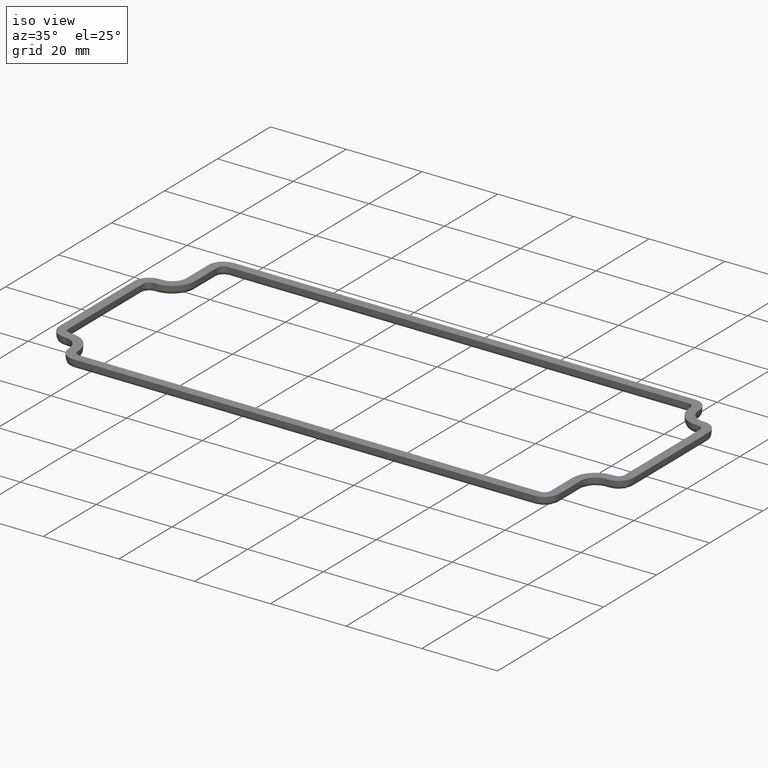
[diagram: clean part render]
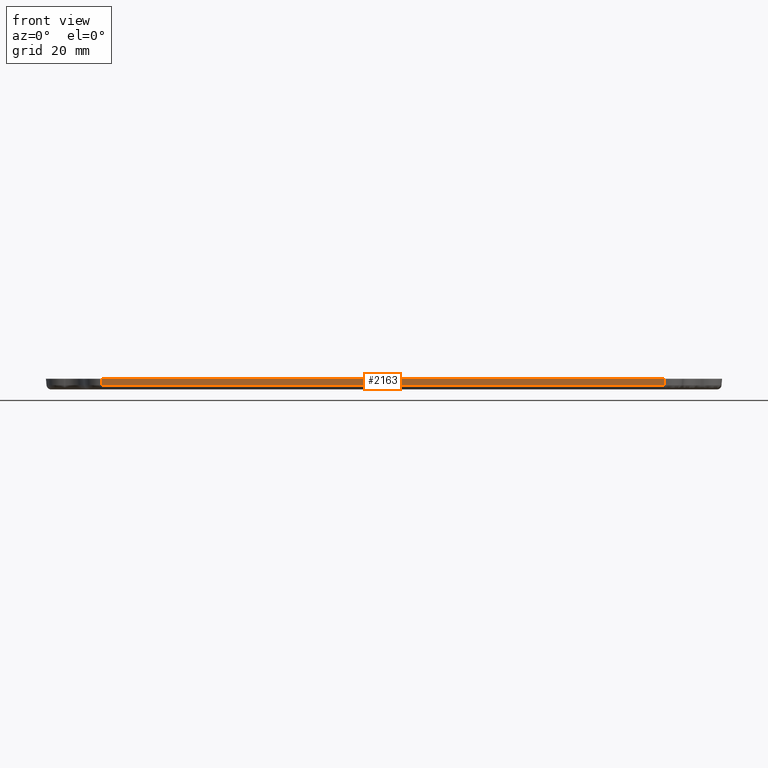
[diagram: tour spotlight — one face highlighted and labeled with its STEP entity id]
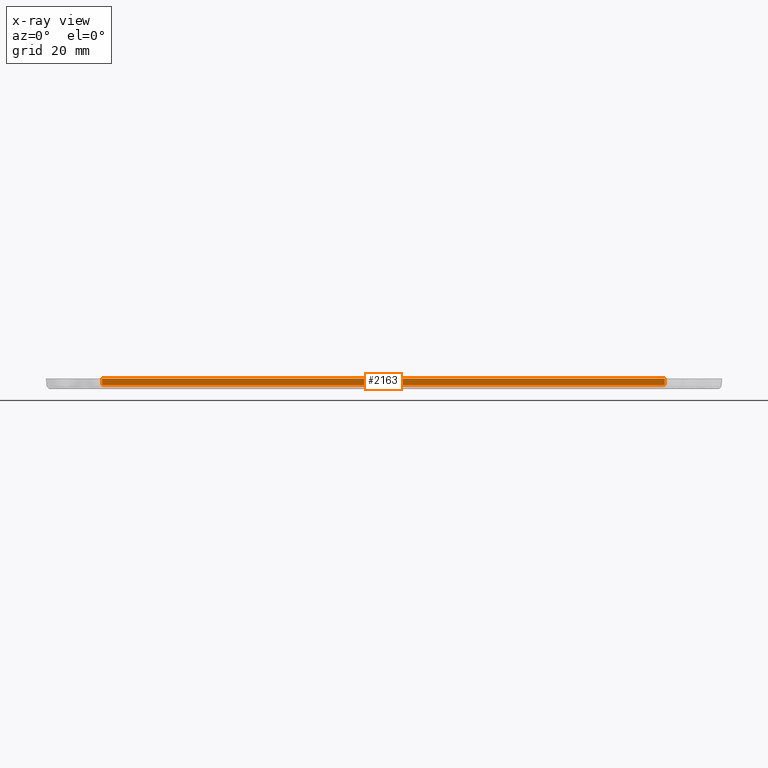
[diagram: x-ray of the same camera — body ghosted, this tour face saturated]
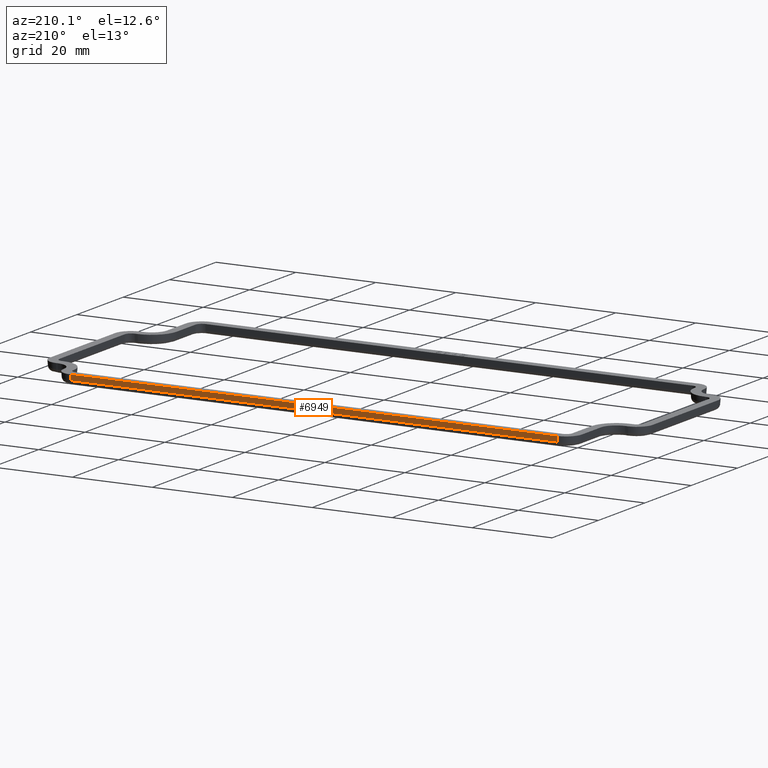
[diagram: tour spotlight — one face highlighted and labeled with its STEP entity id]
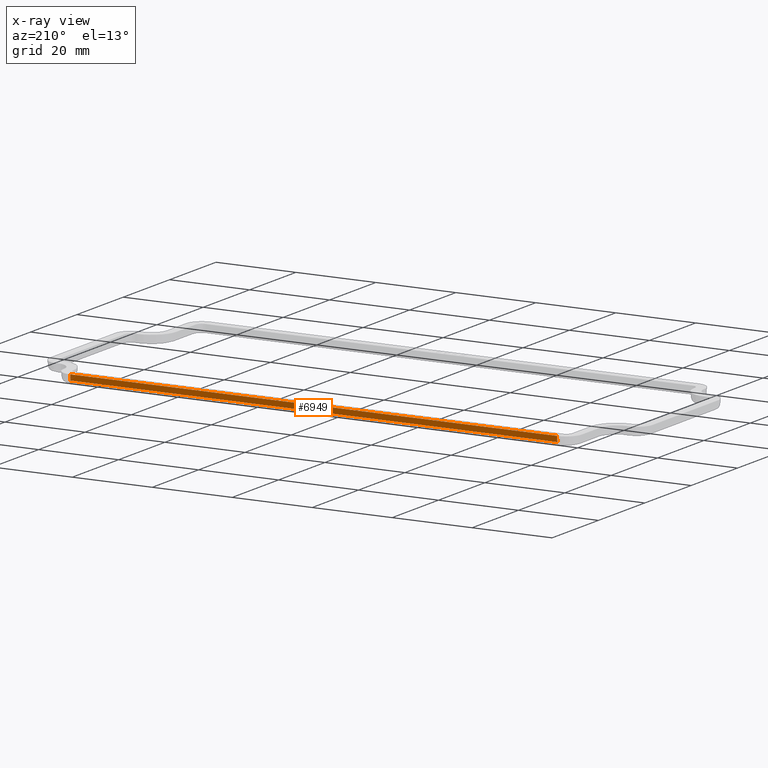
[diagram: x-ray of the same camera — body ghosted, this tour face saturated]
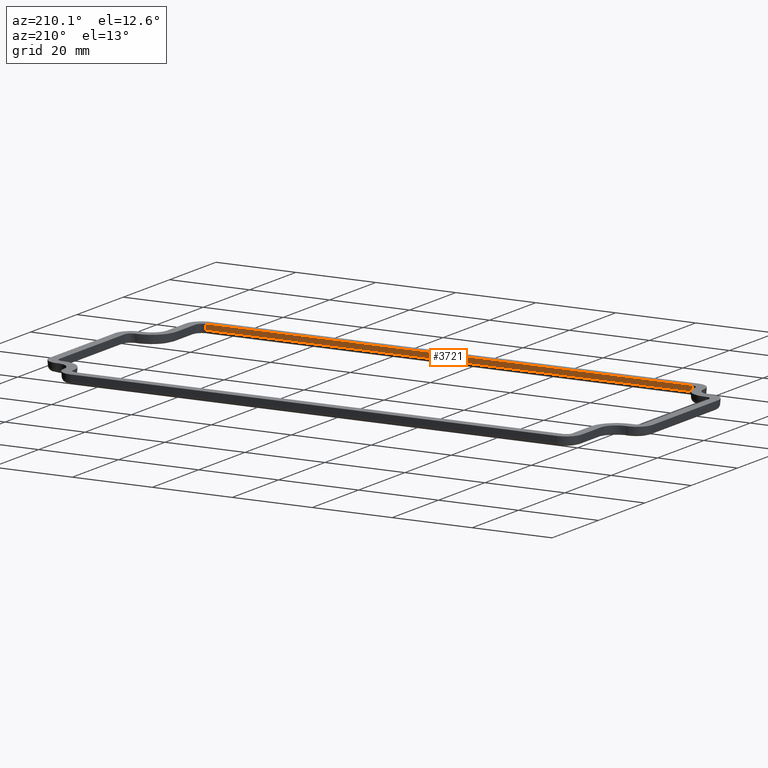
[diagram: tour spotlight — one face highlighted and labeled with its STEP entity id]
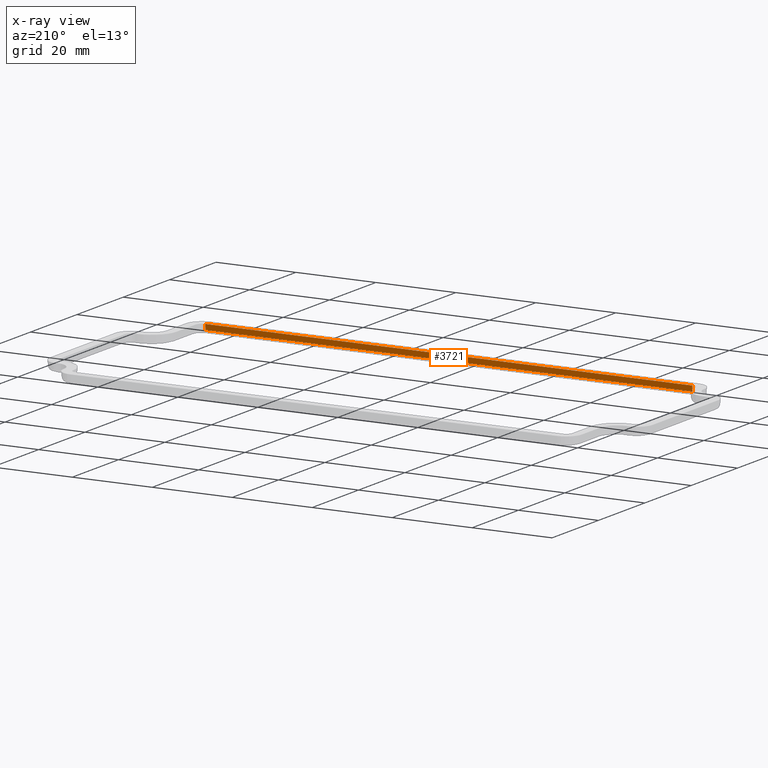
[diagram: x-ray of the same camera — body ghosted, this tour face saturated]
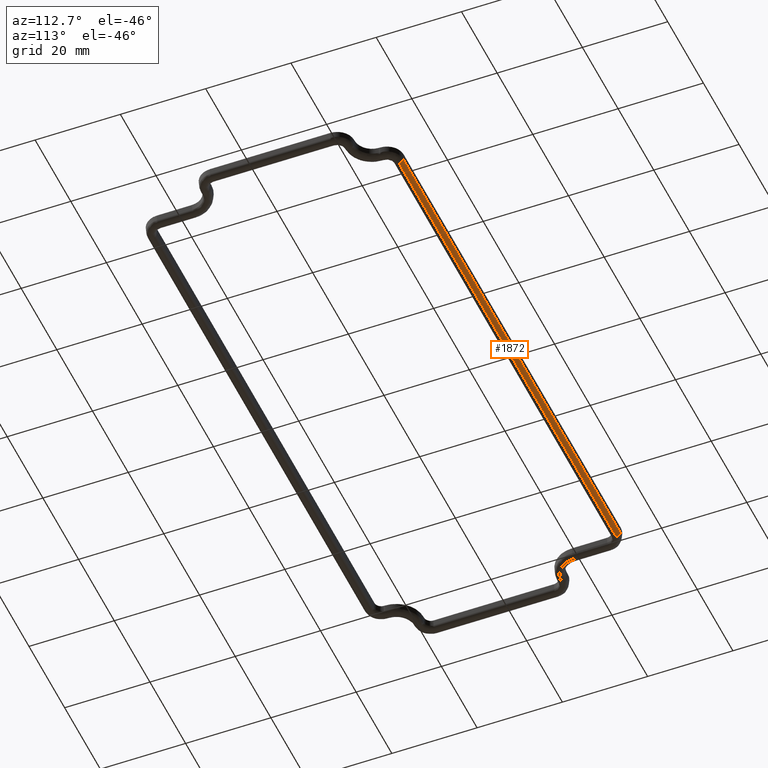
[diagram: tour spotlight — one face highlighted and labeled with its STEP entity id]
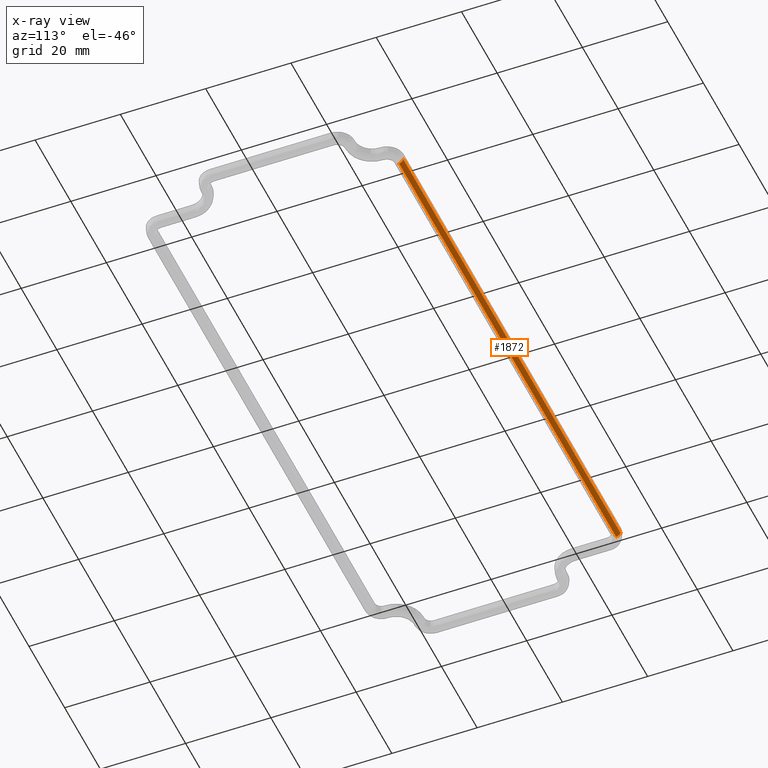
[diagram: x-ray of the same camera — body ghosted, this tour face saturated]
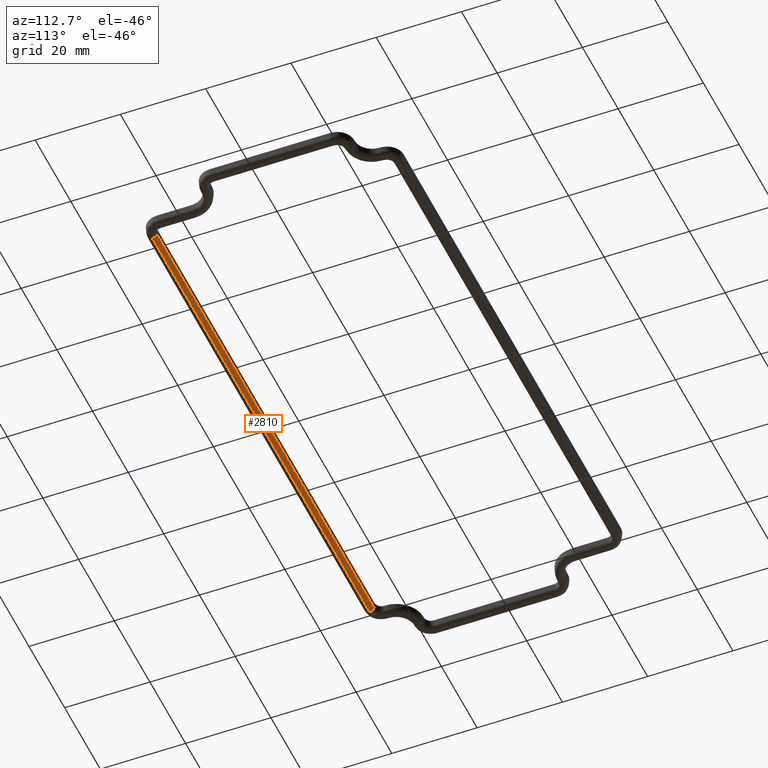
[diagram: tour spotlight — one face highlighted and labeled with its STEP entity id]
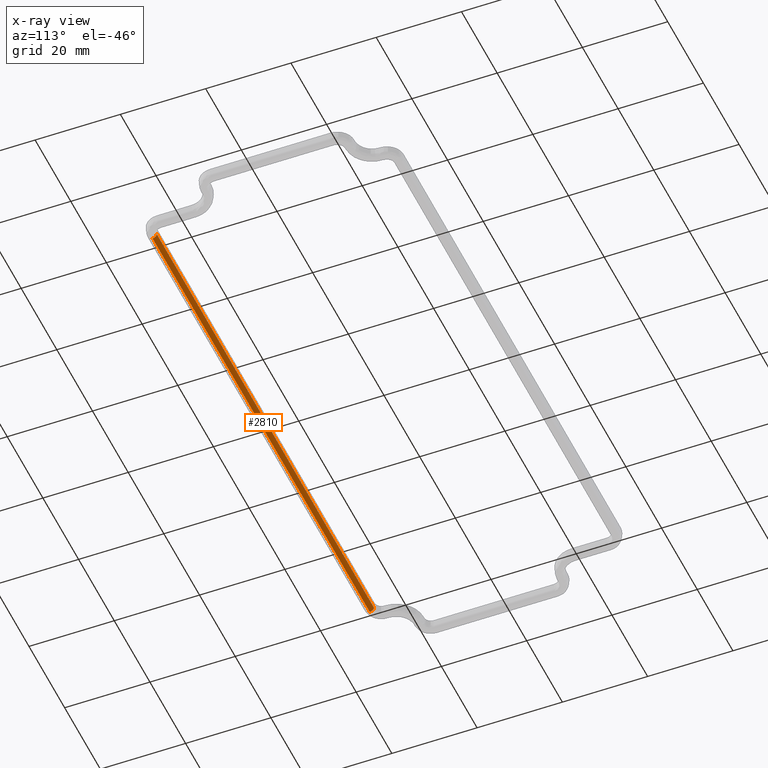
[diagram: x-ray of the same camera — body ghosted, this tour face saturated]
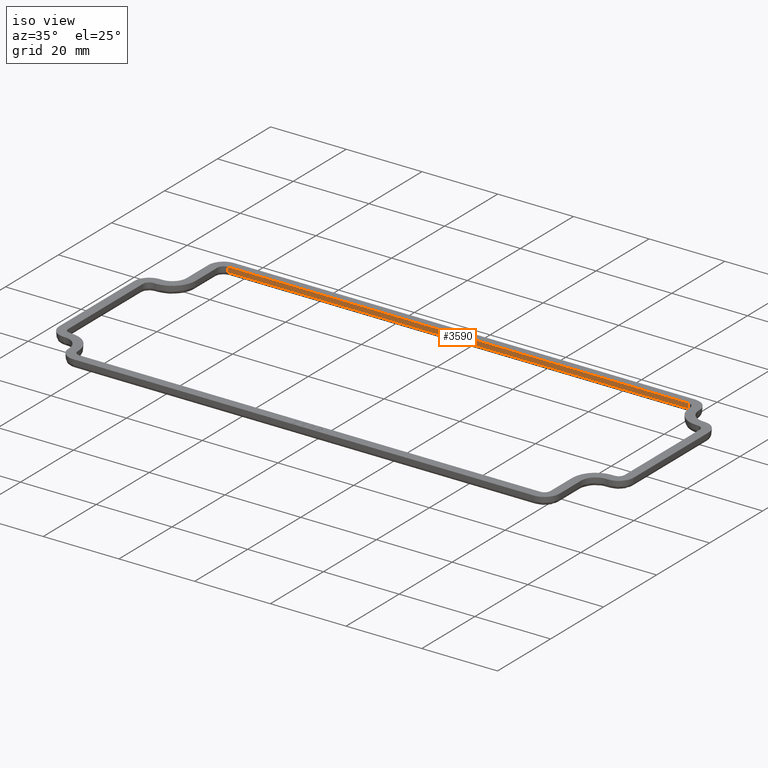
[diagram: tour spotlight — one face highlighted and labeled with its STEP entity id]
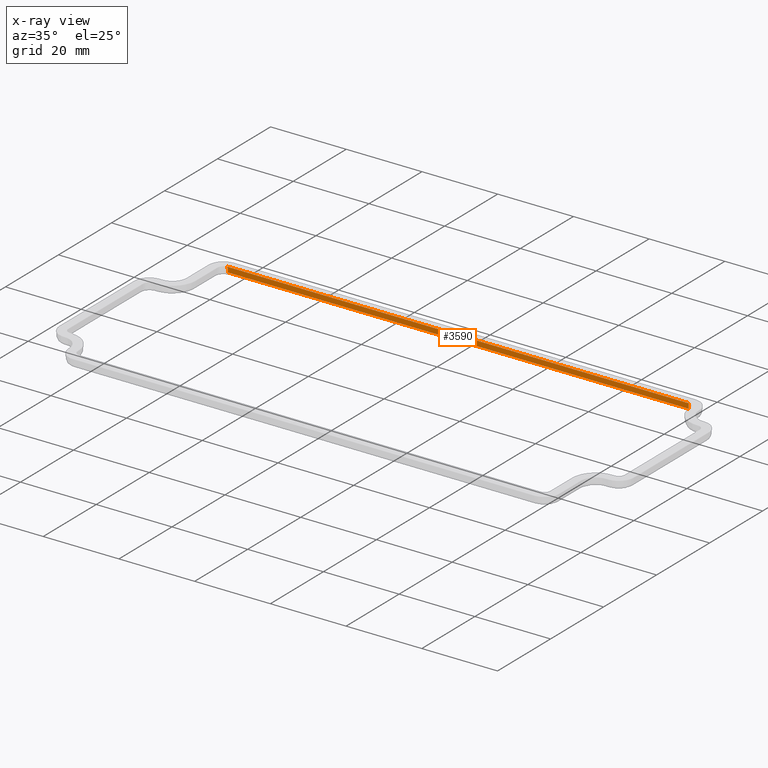
[diagram: x-ray of the same camera — body ghosted, this tour face saturated]
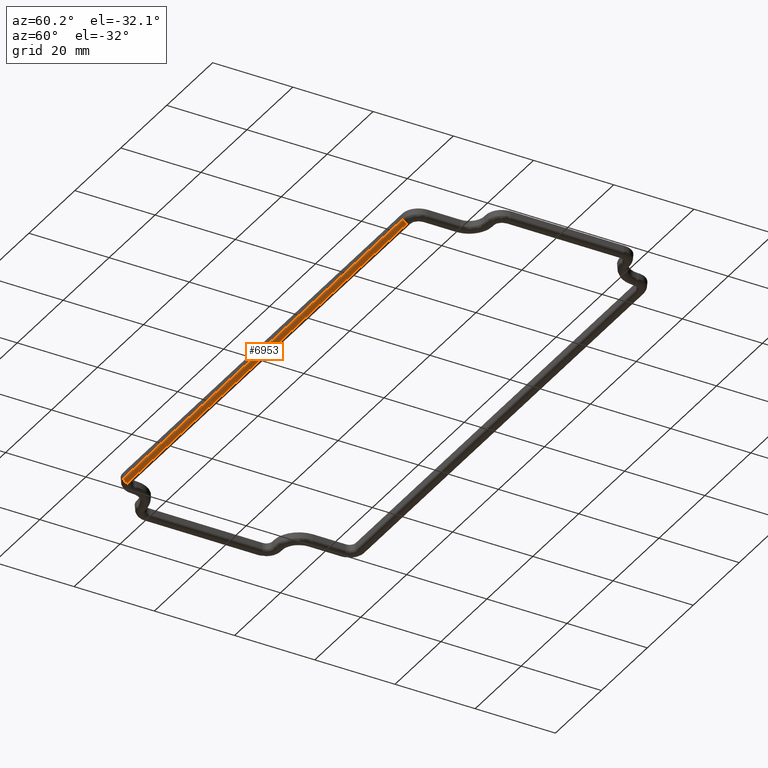
[diagram: tour spotlight — one face highlighted and labeled with its STEP entity id]
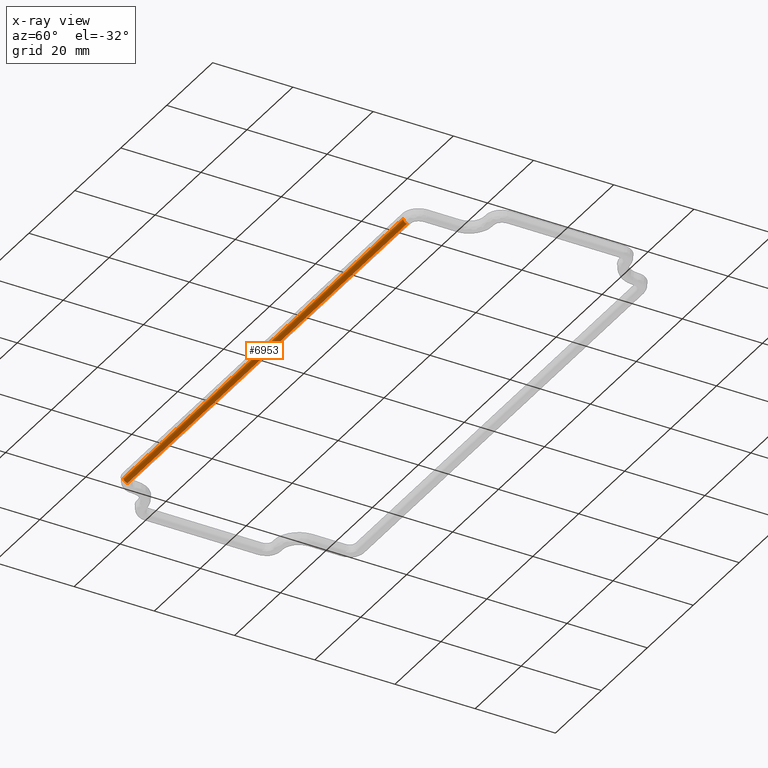
[diagram: x-ray of the same camera — body ghosted, this tour face saturated]
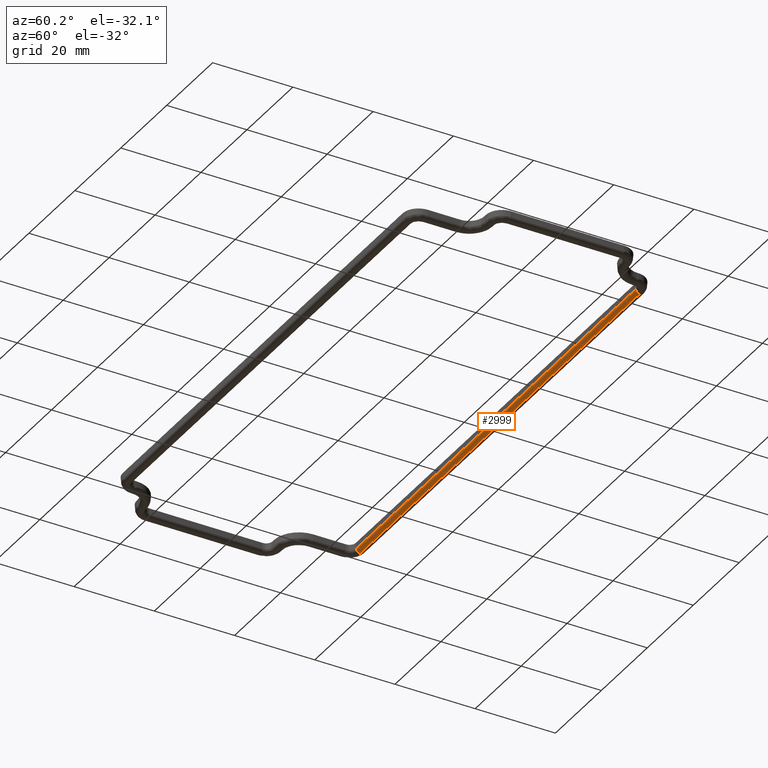
[diagram: tour spotlight — one face highlighted and labeled with its STEP entity id]
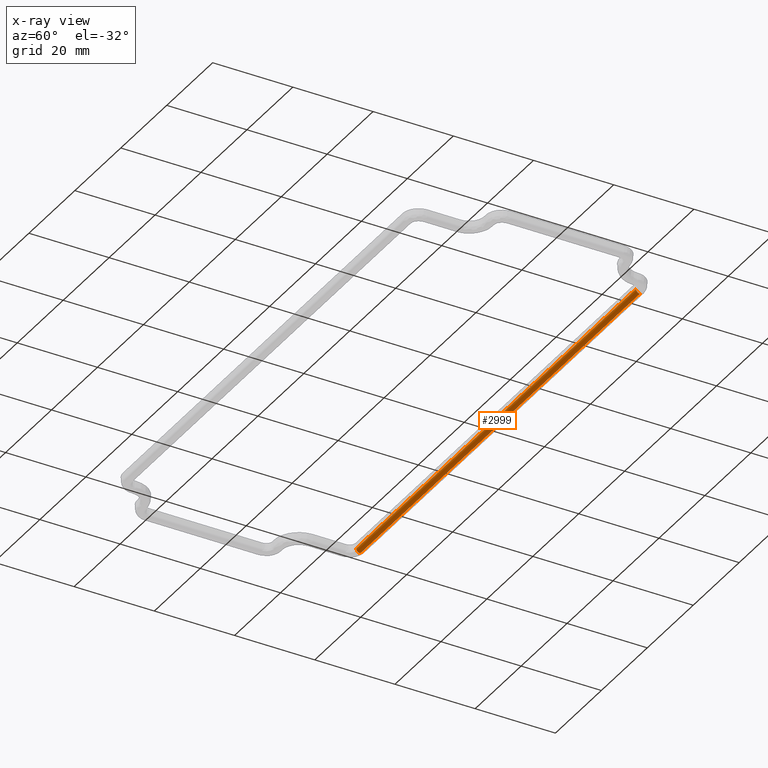
[diagram: x-ray of the same camera — body ghosted, this tour face saturated]
A machine part: a face-by-face anatomy tour. The part has 154 B-rep faces; the first image is the clean iso view, then the 8 largest visible faces are spotlighted one at a time (largest first), each with its STEP entity span.

Face 1 — front view, entity #2163. An x-ray twin of the same camera follows (body ghosted, this face saturated) — the face is partly hidden behind the body. In plain terms, the highlighted planar face has unit normal (0, -0.9962, -0.0872).
Definition (entity closure, byte-faithful):
#80 = LINE ( 'NONE', #1218, #6196 ) ;
#230 = CARTESIAN_POINT ( 'NONE',  ( 2.391732283464567121, -1.187007874015748143, 0.0000000000000000000 ) ) ;
#318 = CARTESIAN_POINT ( 'NONE',  ( -2.401574803149602477, -1.187007874015671760, 0.0000000000000000000 ) ) ;
#406 = ORIENTED_EDGE ( 'NONE', *, *, #3898, .T. ) ;
#451 = VECTOR ( 'NONE', #6466, 39.37007874015748143 ) ;
#966 = LINE ( 'NONE', #2024, #451 ) ;
#1009 = EDGE_CURVE ( 'NONE', #4652, #4959, #6539, .T. ) ;
#1198 = DIRECTION ( 'NONE',  ( 0.0000000000000000000, -0.9961946980917455452, -0.08715574274765816587 ) ) ;
#1218 = CARTESIAN_POINT ( 'NONE',  ( 2.391732283464567121, -1.187007874015748143, 0.0000000000000000000 ) ) ;
#1382 = EDGE_LOOP ( 'NONE', ( #5169, #406, #4644, #3088 ) ) ;
#1648 = CARTESIAN_POINT ( 'NONE',  ( -2.401574803149602477, -1.187007874015748143, 0.0000000000000000000 ) ) ;
#1705 = CARTESIAN_POINT ( 'NONE',  ( -2.401574803149602477, -1.182229905431681161, -0.05461243081683699735 ) ) ;
#1759 = PLANE ( 'NONE',  #2506 ) ;
#1855 = VECTOR ( 'NONE', #4801, 39.37007874015748143 ) ;
#2024 = CARTESIAN_POINT ( 'NONE',  ( -2.401574803149918225, -1719.960358245516318, 19645.66929133858503 ) ) ;
#2163 = ADVANCED_FACE ( 'NONE', ( #6021 ), #1759, .T. ) ;
#2230 = CARTESIAN_POINT ( 'NONE',  ( -2.401574803149602477, -1.182229905431666506, -0.05461243081684047374 ) ) ;
#2289 = VERTEX_POINT ( 'NONE', #230 ) ;
#2476 = VERTEX_POINT ( 'NONE', #318 ) ;
#2506 = AXIS2_PLACEMENT_3D ( 'NONE', #1648, #1198, #2806 ) ;
#2635 = LINE ( 'NONE', #4236, #1855 ) ;
#2806 = DIRECTION ( 'NONE',  ( 0.0000000000000000000, 0.08715574274765815199, -0.9961946980917454342 ) ) ;
#3088 = ORIENTED_EDGE ( 'NONE', *, *, #1009, .T. ) ;
#3754 = DIRECTION ( 'NONE',  ( 1.000000000000000000, 0.0000000000000000000, 0.0000000000000000000 ) ) ;
#3898 = EDGE_CURVE ( 'NONE', #2289, #2476, #2635, .T. ) ;
#4236 = CARTESIAN_POINT ( 'NONE',  ( 2.696850393700783943, -1.187007874015748143, 0.0000000000000000000 ) ) ;
#4606 = EDGE_CURVE ( 'NONE', #4652, #2476, #966, .T. ) ;
#4644 = ORIENTED_EDGE ( 'NONE', *, *, #4606, .F. ) ;
#4652 = VERTEX_POINT ( 'NONE', #2230 ) ;
#4722 = EDGE_CURVE ( 'NONE', #4959, #2289, #80, .T. ) ;
#4801 = DIRECTION ( 'NONE',  ( -1.000000000000000000, 0.0000000000000000000, -0.0000000000000000000 ) ) ;
#4959 = VERTEX_POINT ( 'NONE', #6984 ) ;
#4993 = DIRECTION ( 'NONE',  ( -0.0000000000000000000, -0.08715574274765815199, 0.9961946980917454342 ) ) ;
#5169 = ORIENTED_EDGE ( 'NONE', *, *, #4722, .T. ) ;
#5353 = VECTOR ( 'NONE', #3754, 39.37007874015748143 ) ;
#6021 = FACE_OUTER_BOUND ( 'NONE', #1382, .T. ) ;
#6196 = VECTOR ( 'NONE', #4993, 39.37007874015748143 ) ;
#6466 = DIRECTION ( 'NONE',  ( -1.601025020748446811E-17, -0.08715574274765823526, 0.9961946980917454342 ) ) ;
#6539 = LINE ( 'NONE', #1705, #5353 ) ;
#6984 = CARTESIAN_POINT ( 'NONE',  ( 2.391732283464567121, -1.182229905431648076, -0.05461243081683876677 ) ) ;

Face 2 — auxiliary view, entity #6949. An x-ray twin of the same camera follows (body ghosted, this face saturated) — the face is partly hidden behind the body. In plain terms, the highlighted planar face has unit normal (0, 0.9962, -0.0872).
Definition (entity closure, byte-faithful):
#35 = CARTESIAN_POINT ( 'NONE',  ( 2.696850393700783943, 1.187007874015747921, 0.0000000000000000000 ) ) ;
#114 = VECTOR ( 'NONE', #4075, 39.37007874015748143 ) ;
#213 = PLANE ( 'NONE',  #5533 ) ;
#759 = CARTESIAN_POINT ( 'NONE',  ( -2.391732283464567121, 1.182229905431601669, -0.05461243081683869044 ) ) ;
#1061 = EDGE_CURVE ( 'NONE', #2385, #5794, #1545, .T. ) ;
#1095 = CARTESIAN_POINT ( 'NONE',  ( 2.401574803149711723, 1719.960358245513362, 19645.66929133858503 ) ) ;
#1231 = EDGE_CURVE ( 'NONE', #2385, #6279, #5084, .T. ) ;
#1304 = CARTESIAN_POINT ( 'NONE',  ( 2.401574803149606474, 1.182229905431681161, -0.05461243081683699735 ) ) ;
#1508 = DIRECTION ( 'NONE',  ( 5.336750069161481409E-18, 0.08715574274765809648, 0.9961946980917456562 ) ) ;
#1545 = LINE ( 'NONE', #1095, #2311 ) ;
#1985 = CARTESIAN_POINT ( 'NONE',  ( -2.391732283464567121, 1.187007874015748143, 0.0000000000000000000 ) ) ;
#2055 = ORIENTED_EDGE ( 'NONE', *, *, #6619, .T. ) ;
#2293 = DIRECTION ( 'NONE',  ( 0.0000000000000000000, 0.9961946980917455452, -0.08715574274765816587 ) ) ;
#2311 = VECTOR ( 'NONE', #1508, 39.37007874015747433 ) ;
#2329 = ORIENTED_EDGE ( 'NONE', *, *, #1231, .T. ) ;
#2373 = ORIENTED_EDGE ( 'NONE', *, *, #3681, .T. ) ;
#2385 = VERTEX_POINT ( 'NONE', #2639 ) ;
#2518 = CARTESIAN_POINT ( 'NONE',  ( 2.401574803149606474, 1.187007874015671760, 0.0000000000000000000 ) ) ;
#2639 = CARTESIAN_POINT ( 'NONE',  ( 2.401574803149606474, 1.182229905431666506, -0.05461243081684047374 ) ) ;
#2859 = FACE_OUTER_BOUND ( 'NONE', #3575, .T. ) ;
#3575 = EDGE_LOOP ( 'NONE', ( #2055, #2373, #6885, #2329 ) ) ;
#3681 = EDGE_CURVE ( 'NONE', #5760, #5794, #6495, .T. ) ;
#3820 = DIRECTION ( 'NONE',  ( 1.000000000000000000, -0.0000000000000000000, 0.0000000000000000000 ) ) ;
#3979 = VECTOR ( 'NONE', #4976, 39.37007874015748143 ) ;
#4075 = DIRECTION ( 'NONE',  ( 0.0000000000000000000, 0.08715574274765815199, 0.9961946980917454342 ) ) ;
#4535 = CARTESIAN_POINT ( 'NONE',  ( 2.401574803149606474, 1.187007874015748143, 0.0000000000000000000 ) ) ;
#4740 = LINE ( 'NONE', #1985, #114 ) ;
#4968 = CARTESIAN_POINT ( 'NONE',  ( -2.391732283464567121, 1.187007874015747921, -2.964877661017869235E-18 ) ) ;
#4976 = DIRECTION ( 'NONE',  ( -1.000000000000000000, 0.0000000000000000000, -0.0000000000000000000 ) ) ;
#5084 = LINE ( 'NONE', #1304, #3979 ) ;
#5533 = AXIS2_PLACEMENT_3D ( 'NONE', #4535, #2293, #6069 ) ;
#5760 = VERTEX_POINT ( 'NONE', #4968 ) ;
#5794 = VERTEX_POINT ( 'NONE', #2518 ) ;
#5897 = VECTOR ( 'NONE', #3820, 39.37007874015748143 ) ;
#6069 = DIRECTION ( 'NONE',  ( 0.0000000000000000000, 0.08715574274765815199, 0.9961946980917454342 ) ) ;
#6279 = VERTEX_POINT ( 'NONE', #759 ) ;
#6495 = LINE ( 'NONE', #35, #5897 ) ;
#6619 = EDGE_CURVE ( 'NONE', #6279, #5760, #4740, .T. ) ;
#6885 = ORIENTED_EDGE ( 'NONE', *, *, #1061, .F. ) ;
#6949 = ADVANCED_FACE ( 'NONE', ( #2859 ), #213, .T. ) ;

Face 3 — auxiliary view, entity #3721. An x-ray twin of the same camera follows (body ghosted, this face saturated) — the face is partly hidden behind the body. In plain terms, the highlighted planar face has unit normal (0, 0.9962, -0.0872).
Definition (entity closure, byte-faithful):
#473 = DIRECTION ( 'NONE',  ( -1.000000000000000000, 0.0000000000000000000, -0.0000000000000000000 ) ) ;
#487 = EDGE_CURVE ( 'NONE', #5011, #3864, #513, .T. ) ;
#500 = DIRECTION ( 'NONE',  ( 0.0000000000000000000, 0.9961946980917455452, -0.08715574274765816587 ) ) ;
#513 = LINE ( 'NONE', #1116, #742 ) ;
#742 = VECTOR ( 'NONE', #2657, 39.37007874015748143 ) ;
#765 = ORIENTED_EDGE ( 'NONE', *, *, #1137, .T. ) ;
#796 = ORIENTED_EDGE ( 'NONE', *, *, #1952, .T. ) ;
#844 = LINE ( 'NONE', #5117, #3180 ) ;
#1116 = CARTESIAN_POINT ( 'NONE',  ( 2.696850393700783943, -1.092519685039370136, 0.0000000000000000000 ) ) ;
#1137 = EDGE_CURVE ( 'NONE', #4674, #5011, #3241, .T. ) ;
#1254 = CARTESIAN_POINT ( 'NONE',  ( -2.401574803149602477, -1.097297653623437341, -0.05461243081683869738 ) ) ;
#1535 = LINE ( 'NONE', #3188, #4893 ) ;
#1620 = CARTESIAN_POINT ( 'NONE',  ( -2.401574803149602477, -1.092519685039370136, 0.0000000000000000000 ) ) ;
#1654 = CARTESIAN_POINT ( 'NONE',  ( 2.391732283464567121, -1.092519685039124111, 0.0000000000000000000 ) ) ;
#1732 = FACE_OUTER_BOUND ( 'NONE', #5756, .T. ) ;
#1836 = DIRECTION ( 'NONE',  ( 5.336750069161496817E-18, -0.08715574274765834628, -0.9961946980917454342 ) ) ;
#1952 = EDGE_CURVE ( 'NONE', #3864, #3189, #844, .T. ) ;
#2094 = CARTESIAN_POINT ( 'NONE',  ( 2.391732283464567121, -1.097297653623288571, -0.05461243081599975041 ) ) ;
#2107 = ORIENTED_EDGE ( 'NONE', *, *, #4378, .T. ) ;
#2132 = ORIENTED_EDGE ( 'NONE', *, *, #487, .T. ) ;
#2534 = CARTESIAN_POINT ( 'NONE',  ( -2.401574803149602477, -1.092519685039370136, 0.0000000000000000000 ) ) ;
#2647 = CARTESIAN_POINT ( 'NONE',  ( -2.401574803149602477, -1.092519685039370136, 0.0000000000000000000 ) ) ;
#2657 = DIRECTION ( 'NONE',  ( 1.000000000000000000, -0.0000000000000000000, 0.0000000000000000000 ) ) ;
#3180 = VECTOR ( 'NONE', #1836, 39.37007874015748143 ) ;
#3188 = CARTESIAN_POINT ( 'NONE',  ( -2.401574803149602477, -1.097297653623437119, -0.05461243081683699735 ) ) ;
#3189 = VERTEX_POINT ( 'NONE', #2094 ) ;
#3210 = VECTOR ( 'NONE', #5322, 39.37007874015748143 ) ;
#3241 = LINE ( 'NONE', #1620, #3210 ) ;
#3721 = ADVANCED_FACE ( 'NONE', ( #1732 ), #3891, .T. ) ;
#3864 = VERTEX_POINT ( 'NONE', #1654 ) ;
#3891 = PLANE ( 'NONE',  #6903 ) ;
#4378 = EDGE_CURVE ( 'NONE', #3189, #4674, #1535, .T. ) ;
#4674 = VERTEX_POINT ( 'NONE', #1254 ) ;
#4893 = VECTOR ( 'NONE', #473, 39.37007874015748143 ) ;
#5011 = VERTEX_POINT ( 'NONE', #2534 ) ;
#5117 = CARTESIAN_POINT ( 'NONE',  ( 2.391732283464672371, -1719.865870056541553, -19645.66929133858503 ) ) ;
#5322 = DIRECTION ( 'NONE',  ( 0.0000000000000000000, 0.08715574274765815199, 0.9961946980917454342 ) ) ;
#5756 = EDGE_LOOP ( 'NONE', ( #765, #2132, #796, #2107 ) ) ;
#6903 = AXIS2_PLACEMENT_3D ( 'NONE', #2647, #500, #6950 ) ;
#6950 = DIRECTION ( 'NONE',  ( 0.0000000000000000000, 0.08715574274765815199, 0.9961946980917454342 ) ) ;

Face 4 — auxiliary view, entity #1872. An x-ray twin of the same camera follows (body ghosted, this face saturated) — the face is partly hidden behind the body. In plain terms, the highlighted cylindrical surface (edge-blend (fillet) strip) has radius 1 mm, axis along (-1, 0, 0).
Definition (entity closure, byte-faithful):
#246 = ORIENTED_EDGE ( 'NONE', *, *, #1399, .T. ) ;
#403 = EDGE_CURVE ( 'NONE', #655, #6279, #6704, .T. ) ;
#511 = CIRCLE ( 'NONE', #5030, 0.03937007874015751446 ) ;
#563 = FACE_OUTER_BOUND ( 'NONE', #3152, .T. ) ;
#655 = VERTEX_POINT ( 'NONE', #4071 ) ;
#759 = CARTESIAN_POINT ( 'NONE',  ( -2.391732283464567121, 1.182229905431601669, -0.05461243081683869044 ) ) ;
#1122 = CARTESIAN_POINT ( 'NONE',  ( 2.401574803149606474, 1.143009641727279480, -0.09055118110236221041 ) ) ;
#1155 = EDGE_CURVE ( 'NONE', #6141, #2385, #511, .T. ) ;
#1231 = EDGE_CURVE ( 'NONE', #2385, #6279, #5084, .T. ) ;
#1235 = ORIENTED_EDGE ( 'NONE', *, *, #1231, .F. ) ;
#1304 = CARTESIAN_POINT ( 'NONE',  ( 2.401574803149606474, 1.182229905431681161, -0.05461243081683699735 ) ) ;
#1399 = EDGE_CURVE ( 'NONE', #6141, #655, #5946, .T. ) ;
#1747 = AXIS2_PLACEMENT_3D ( 'NONE', #5435, #5397, #5364 ) ;
#1872 = ADVANCED_FACE ( 'NONE', ( #563 ), #2711, .T. ) ;
#2018 = ORIENTED_EDGE ( 'NONE', *, *, #1155, .F. ) ;
#2385 = VERTEX_POINT ( 'NONE', #2639 ) ;
#2391 = DIRECTION ( 'NONE',  ( -1.000000000000000000, 0.0000000000000000000, 0.0000000000000000000 ) ) ;
#2637 = CARTESIAN_POINT ( 'NONE',  ( 2.401574803149606474, 1.143009641727281478, -0.05118110236220473064 ) ) ;
#2639 = CARTESIAN_POINT ( 'NONE',  ( 2.401574803149606474, 1.182229905431666506, -0.05461243081684047374 ) ) ;
#2711 = CYLINDRICAL_SURFACE ( 'NONE', #5107, 0.03937007874015747977 ) ;
#2953 = CARTESIAN_POINT ( 'NONE',  ( 2.401574803149606474, 1.143009641727279480, -0.05118110236220473064 ) ) ;
#3152 = EDGE_LOOP ( 'NONE', ( #2018, #246, #4611, #1235 ) ) ;
#3375 = CARTESIAN_POINT ( 'NONE',  ( 2.401574803149606474, 1.143009641727280146, -0.09055118110236221041 ) ) ;
#3979 = VECTOR ( 'NONE', #4976, 39.37007874015748143 ) ;
#4025 = DIRECTION ( 'NONE',  ( 0.0000000000000000000, 0.0000000000000000000, 1.000000000000000000 ) ) ;
#4071 = CARTESIAN_POINT ( 'NONE',  ( -2.391732283464567121, 1.143009641727279702, -0.09055118110236221041 ) ) ;
#4611 = ORIENTED_EDGE ( 'NONE', *, *, #403, .T. ) ;
#4657 = VECTOR ( 'NONE', #5426, 39.37007874015748143 ) ;
#4802 = DIRECTION ( 'NONE',  ( 1.000000000000000000, 6.123233995736766036E-17, 0.0000000000000000000 ) ) ;
#4976 = DIRECTION ( 'NONE',  ( -1.000000000000000000, 0.0000000000000000000, -0.0000000000000000000 ) ) ;
#5030 = AXIS2_PLACEMENT_3D ( 'NONE', #2637, #4802, #6941 ) ;
#5084 = LINE ( 'NONE', #1304, #3979 ) ;
#5107 = AXIS2_PLACEMENT_3D ( 'NONE', #2953, #2391, #4025 ) ;
#5364 = DIRECTION ( 'NONE',  ( 0.0000000000000000000, 0.0000000000000000000, 1.000000000000000000 ) ) ;
#5397 = DIRECTION ( 'NONE',  ( 1.000000000000000000, -0.0000000000000000000, -0.0000000000000000000 ) ) ;
#5426 = DIRECTION ( 'NONE',  ( -1.000000000000000000, 0.0000000000000000000, 0.0000000000000000000 ) ) ;
#5435 = CARTESIAN_POINT ( 'NONE',  ( -2.391732283464567121, 1.143009641727279480, -0.05118110236220473064 ) ) ;
#5946 = LINE ( 'NONE', #1122, #4657 ) ;
#6141 = VERTEX_POINT ( 'NONE', #3375 ) ;
#6279 = VERTEX_POINT ( 'NONE', #759 ) ;
#6704 = CIRCLE ( 'NONE', #1747, 0.03937007874015747977 ) ;
#6941 = DIRECTION ( 'NONE',  ( 0.0000000000000000000, 1.000000000000000000, 0.0000000000000000000 ) ) ;

Face 5 — auxiliary view, entity #2810. An x-ray twin of the same camera follows (body ghosted, this face saturated) — the face is partly hidden behind the body. In plain terms, the highlighted cylindrical surface (edge-blend (fillet) strip) has radius 1 mm, axis along (1, 0, 0).
Definition (entity closure, byte-faithful):
#203 = DIRECTION ( 'NONE',  ( 1.000000000000000000, 0.0000000000000000000, 0.0000000000000000000 ) ) ;
#274 = DIRECTION ( 'NONE',  ( 0.0000000000000000000, -1.000000000000000000, 0.0000000000000000000 ) ) ;
#388 = DIRECTION ( 'NONE',  ( -1.000000000000000000, -0.0000000000000000000, -0.0000000000000000000 ) ) ;
#473 = DIRECTION ( 'NONE',  ( -1.000000000000000000, 0.0000000000000000000, -0.0000000000000000000 ) ) ;
#674 = DIRECTION ( 'NONE',  ( 0.0000000000000000000, 0.0000000000000000000, -1.000000000000000000 ) ) ;
#693 = VECTOR ( 'NONE', #388, 39.37007874015748143 ) ;
#1032 = EDGE_LOOP ( 'NONE', ( #4641, #4320, #1707, #6508 ) ) ;
#1254 = CARTESIAN_POINT ( 'NONE',  ( -2.401574803149602477, -1.097297653623437341, -0.05461243081683869738 ) ) ;
#1275 = EDGE_CURVE ( 'NONE', #2890, #3189, #1606, .T. ) ;
#1402 = DIRECTION ( 'NONE',  ( 1.000000000000000000, 1.836970198721029688E-16, -0.0000000000000000000 ) ) ;
#1535 = LINE ( 'NONE', #3188, #4893 ) ;
#1537 = CARTESIAN_POINT ( 'NONE',  ( 2.391732283464567121, -1.136517917327837024, -0.09055118110236221041 ) ) ;
#1606 = CIRCLE ( 'NONE', #3865, 0.03937007874015751446 ) ;
#1707 = ORIENTED_EDGE ( 'NONE', *, *, #1783, .T. ) ;
#1725 = DIRECTION ( 'NONE',  ( 1.000000000000000000, 0.0000000000000000000, 0.0000000000000000000 ) ) ;
#1739 = AXIS2_PLACEMENT_3D ( 'NONE', #1966, #203, #3457 ) ;
#1783 = EDGE_CURVE ( 'NONE', #6212, #4674, #3301, .T. ) ;
#1966 = CARTESIAN_POINT ( 'NONE',  ( 2.696850393700783943, -1.136517917327838578, -0.05118110236220473064 ) ) ;
#2094 = CARTESIAN_POINT ( 'NONE',  ( 2.391732283464567121, -1.097297653623288571, -0.05461243081599975041 ) ) ;
#2390 = AXIS2_PLACEMENT_3D ( 'NONE', #3320, #1725, #674 ) ;
#2810 = ADVANCED_FACE ( 'NONE', ( #2949 ), #6159, .T. ) ;
#2890 = VERTEX_POINT ( 'NONE', #1537 ) ;
#2949 = FACE_OUTER_BOUND ( 'NONE', #1032, .T. ) ;
#3188 = CARTESIAN_POINT ( 'NONE',  ( -2.401574803149602477, -1.097297653623437119, -0.05461243081683699735 ) ) ;
#3189 = VERTEX_POINT ( 'NONE', #2094 ) ;
#3301 = CIRCLE ( 'NONE', #2390, 0.03937007874015747283 ) ;
#3320 = CARTESIAN_POINT ( 'NONE',  ( -2.401574803149602477, -1.136517917327838578, -0.05118110236220473064 ) ) ;
#3457 = DIRECTION ( 'NONE',  ( 0.0000000000000000000, 0.0000000000000000000, -1.000000000000000000 ) ) ;
#3672 = LINE ( 'NONE', #5817, #693 ) ;
#3865 = AXIS2_PLACEMENT_3D ( 'NONE', #6263, #1402, #274 ) ;
#4320 = ORIENTED_EDGE ( 'NONE', *, *, #4981, .T. ) ;
#4378 = EDGE_CURVE ( 'NONE', #3189, #4674, #1535, .T. ) ;
#4641 = ORIENTED_EDGE ( 'NONE', *, *, #1275, .F. ) ;
#4674 = VERTEX_POINT ( 'NONE', #1254 ) ;
#4677 = CARTESIAN_POINT ( 'NONE',  ( -2.401574803149602477, -1.136517917327838800, -0.09055118110236221041 ) ) ;
#4893 = VECTOR ( 'NONE', #473, 39.37007874015748143 ) ;
#4981 = EDGE_CURVE ( 'NONE', #2890, #6212, #3672, .T. ) ;
#5817 = CARTESIAN_POINT ( 'NONE',  ( 2.696850393700783943, -1.136517917327838578, -0.09055118110236221041 ) ) ;
#6159 = CYLINDRICAL_SURFACE ( 'NONE', #1739, 0.03937007874015747283 ) ;
#6212 = VERTEX_POINT ( 'NONE', #4677 ) ;
#6263 = CARTESIAN_POINT ( 'NONE',  ( 2.391732283464567121, -1.136517917327836136, -0.05118110236220473064 ) ) ;
#6508 = ORIENTED_EDGE ( 'NONE', *, *, #4378, .F. ) ;

Face 6 — iso view, entity #3590. An x-ray twin of the same camera follows (body ghosted, this face saturated) — the face is partly hidden behind the body. In plain terms, the highlighted planar face has unit normal (0, -0.9962, -0.0872).
Definition (entity closure, byte-faithful):
#41 = VECTOR ( 'NONE', #2232, 39.37007874015748143 ) ;
#82 = LINE ( 'NONE', #6009, #41 ) ;
#154 = AXIS2_PLACEMENT_3D ( 'NONE', #3675, #4176, #3639 ) ;
#321 = PLANE ( 'NONE',  #154 ) ;
#333 = VERTEX_POINT ( 'NONE', #3244 ) ;
#521 = CARTESIAN_POINT ( 'NONE',  ( 2.401574803149606474, 1.097297653623506175, -0.05461243081683877371 ) ) ;
#815 = CARTESIAN_POINT ( 'NONE',  ( 2.401574803149606474, 1.092519685039369914, 2.964877661017869235E-18 ) ) ;
#837 = VECTOR ( 'NONE', #6380, 39.37007874015748143 ) ;
#974 = ORIENTED_EDGE ( 'NONE', *, *, #5040, .T. ) ;
#1106 = ORIENTED_EDGE ( 'NONE', *, *, #2989, .T. ) ;
#1182 = VECTOR ( 'NONE', #2803, 39.37007874015748143 ) ;
#1194 = CARTESIAN_POINT ( 'NONE',  ( 2.696850393700783943, 1.092519685039369914, 0.0000000000000000000 ) ) ;
#1300 = VERTEX_POINT ( 'NONE', #3523 ) ;
#1589 = DIRECTION ( 'NONE',  ( 1.000000000000000000, 0.0000000000000000000, 0.0000000000000000000 ) ) ;
#2161 = VERTEX_POINT ( 'NONE', #521 ) ;
#2232 = DIRECTION ( 'NONE',  ( -1.601025020748448968E-17, 0.08715574274765834628, -0.9961946980917454342 ) ) ;
#2553 = ORIENTED_EDGE ( 'NONE', *, *, #2682, .T. ) ;
#2682 = EDGE_CURVE ( 'NONE', #2161, #5138, #6092, .T. ) ;
#2803 = DIRECTION ( 'NONE',  ( -1.000000000000000000, 0.0000000000000000000, -0.0000000000000000000 ) ) ;
#2989 = EDGE_CURVE ( 'NONE', #5138, #333, #5386, .T. ) ;
#3244 = CARTESIAN_POINT ( 'NONE',  ( -2.391732283464567121, 1.092519685039263999, 0.0000000000000000000 ) ) ;
#3341 = EDGE_CURVE ( 'NONE', #333, #1300, #82, .T. ) ;
#3523 = CARTESIAN_POINT ( 'NONE',  ( -2.391732283464567121, 1.097297653623383606, -0.05461243081600384436 ) ) ;
#3590 = ADVANCED_FACE ( 'NONE', ( #5197 ), #321, .T. ) ;
#3639 = DIRECTION ( 'NONE',  ( 0.0000000000000000000, 0.08715574274765815199, -0.9961946980917454342 ) ) ;
#3675 = CARTESIAN_POINT ( 'NONE',  ( 2.401574803149606474, 1.092519685039370136, 0.0000000000000000000 ) ) ;
#3703 = LINE ( 'NONE', #4808, #5302 ) ;
#3834 = EDGE_LOOP ( 'NONE', ( #2553, #1106, #4044, #974 ) ) ;
#4044 = ORIENTED_EDGE ( 'NONE', *, *, #3341, .T. ) ;
#4176 = DIRECTION ( 'NONE',  ( 0.0000000000000000000, -0.9961946980917455452, -0.08715574274765816587 ) ) ;
#4490 = CARTESIAN_POINT ( 'NONE',  ( 2.401574803149606474, 1.092519685039370136, 0.0000000000000000000 ) ) ;
#4808 = CARTESIAN_POINT ( 'NONE',  ( 2.401574803149606474, 1.097297653623437119, -0.05461243081683699735 ) ) ;
#5040 = EDGE_CURVE ( 'NONE', #1300, #2161, #3703, .T. ) ;
#5138 = VERTEX_POINT ( 'NONE', #815 ) ;
#5197 = FACE_OUTER_BOUND ( 'NONE', #3834, .T. ) ;
#5302 = VECTOR ( 'NONE', #1589, 39.37007874015748143 ) ;
#5386 = LINE ( 'NONE', #1194, #1182 ) ;
#6009 = CARTESIAN_POINT ( 'NONE',  ( -2.391732283464882869, 1719.865870056542008, -19645.66929133858503 ) ) ;
#6092 = LINE ( 'NONE', #4490, #837 ) ;
#6380 = DIRECTION ( 'NONE',  ( -0.0000000000000000000, -0.08715574274765815199, 0.9961946980917454342 ) ) ;

Face 7 — auxiliary view, entity #6953. An x-ray twin of the same camera follows (body ghosted, this face saturated) — the face is partly hidden behind the body. In plain terms, the highlighted cylindrical surface (edge-blend (fillet) strip) has radius 1 mm, axis along (1, 0, 0).
Definition (entity closure, byte-faithful):
#422 = DIRECTION ( 'NONE',  ( 0.0000000000000000000, -1.000000000000000000, 0.0000000000000000000 ) ) ;
#564 = AXIS2_PLACEMENT_3D ( 'NONE', #2925, #1844, #2261 ) ;
#1009 = EDGE_CURVE ( 'NONE', #4652, #4959, #6539, .T. ) ;
#1705 = CARTESIAN_POINT ( 'NONE',  ( -2.401574803149602477, -1.182229905431681161, -0.05461243081683699735 ) ) ;
#1772 = CARTESIAN_POINT ( 'NONE',  ( -2.401574803149602477, -1.143009641727283254, -0.09055118110236221041 ) ) ;
#1844 = DIRECTION ( 'NONE',  ( 1.000000000000000000, 0.0000000000000000000, 0.0000000000000000000 ) ) ;
#1950 = VERTEX_POINT ( 'NONE', #3559 ) ;
#2230 = CARTESIAN_POINT ( 'NONE',  ( -2.401574803149602477, -1.182229905431666506, -0.05461243081684047374 ) ) ;
#2261 = DIRECTION ( 'NONE',  ( 0.0000000000000000000, 0.0000000000000000000, -1.000000000000000000 ) ) ;
#2444 = ORIENTED_EDGE ( 'NONE', *, *, #3989, .F. ) ;
#2787 = CYLINDRICAL_SURFACE ( 'NONE', #564, 0.03937007874015747283 ) ;
#2925 = CARTESIAN_POINT ( 'NONE',  ( -2.401574803149602477, -1.143009641727283476, -0.05118110236220473064 ) ) ;
#3084 = CARTESIAN_POINT ( 'NONE',  ( -2.401574803149602477, -1.143009641727283476, -0.09055118110236221041 ) ) ;
#3409 = EDGE_LOOP ( 'NONE', ( #4349, #3822, #2444, #6576 ) ) ;
#3559 = CARTESIAN_POINT ( 'NONE',  ( 2.391732283464567121, -1.143009641727283476, -0.09055118110236221041 ) ) ;
#3754 = DIRECTION ( 'NONE',  ( 1.000000000000000000, 0.0000000000000000000, 0.0000000000000000000 ) ) ;
#3789 = VERTEX_POINT ( 'NONE', #1772 ) ;
#3822 = ORIENTED_EDGE ( 'NONE', *, *, #1009, .F. ) ;
#3989 = EDGE_CURVE ( 'NONE', #3789, #4652, #6794, .T. ) ;
#4037 = DIRECTION ( 'NONE',  ( 0.0000000000000000000, 0.0000000000000000000, -1.000000000000000000 ) ) ;
#4282 = CARTESIAN_POINT ( 'NONE',  ( -2.401574803149602477, -1.143009641727281478, -0.05118110236220473064 ) ) ;
#4349 = ORIENTED_EDGE ( 'NONE', *, *, #6393, .T. ) ;
#4501 = FACE_OUTER_BOUND ( 'NONE', #3409, .T. ) ;
#4652 = VERTEX_POINT ( 'NONE', #2230 ) ;
#4959 = VERTEX_POINT ( 'NONE', #6984 ) ;
#5075 = VECTOR ( 'NONE', #5245, 39.37007874015748143 ) ;
#5245 = DIRECTION ( 'NONE',  ( 1.000000000000000000, 0.0000000000000000000, 0.0000000000000000000 ) ) ;
#5353 = VECTOR ( 'NONE', #3754, 39.37007874015748143 ) ;
#5747 = DIRECTION ( 'NONE',  ( -1.000000000000000000, -0.0000000000000000000, -0.0000000000000000000 ) ) ;
#5930 = EDGE_CURVE ( 'NONE', #3789, #1950, #6788, .T. ) ;
#6076 = CIRCLE ( 'NONE', #6533, 0.03937007874015747283 ) ;
#6204 = CARTESIAN_POINT ( 'NONE',  ( 2.391732283464567121, -1.143009641727283476, -0.05118110236220473064 ) ) ;
#6393 = EDGE_CURVE ( 'NONE', #1950, #4959, #6076, .T. ) ;
#6415 = DIRECTION ( 'NONE',  ( -1.000000000000000000, -1.836970198721029688E-16, 0.0000000000000000000 ) ) ;
#6533 = AXIS2_PLACEMENT_3D ( 'NONE', #6204, #5747, #4037 ) ;
#6539 = LINE ( 'NONE', #1705, #5353 ) ;
#6572 = AXIS2_PLACEMENT_3D ( 'NONE', #4282, #6415, #422 ) ;
#6576 = ORIENTED_EDGE ( 'NONE', *, *, #5930, .T. ) ;
#6788 = LINE ( 'NONE', #3084, #5075 ) ;
#6794 = CIRCLE ( 'NONE', #6572, 0.03937007874015751446 ) ;
#6953 = ADVANCED_FACE ( 'NONE', ( #4501 ), #2787, .T. ) ;
#6984 = CARTESIAN_POINT ( 'NONE',  ( 2.391732283464567121, -1.182229905431648076, -0.05461243081683876677 ) ) ;

Face 8 — auxiliary view, entity #2999. An x-ray twin of the same camera follows (body ghosted, this face saturated) — the face is partly hidden behind the body. In plain terms, the highlighted cylindrical surface (edge-blend (fillet) strip) has radius 1 mm, axis along (-1, 0, 0).
Definition (entity closure, byte-faithful):
#29 = CARTESIAN_POINT ( 'NONE',  ( -2.391732283464567121, 1.136517917327836136, -0.05118110236220473064 ) ) ;
#54 = DIRECTION ( 'NONE',  ( -1.000000000000000000, 0.0000000000000000000, 0.0000000000000000000 ) ) ;
#195 = CARTESIAN_POINT ( 'NONE',  ( -2.391732283464567121, 1.136517917327835026, -0.09055118110236221041 ) ) ;
#277 = EDGE_CURVE ( 'NONE', #4671, #2161, #3332, .T. ) ;
#303 = ORIENTED_EDGE ( 'NONE', *, *, #1831, .F. ) ;
#521 = CARTESIAN_POINT ( 'NONE',  ( 2.401574803149606474, 1.097297653623506175, -0.05461243081683877371 ) ) ;
#1042 = AXIS2_PLACEMENT_3D ( 'NONE', #29, #4457, #2182 ) ;
#1065 = ORIENTED_EDGE ( 'NONE', *, *, #4904, .T. ) ;
#1098 = DIRECTION ( 'NONE',  ( 0.0000000000000000000, 0.0000000000000000000, 1.000000000000000000 ) ) ;
#1164 = ORIENTED_EDGE ( 'NONE', *, *, #277, .T. ) ;
#1300 = VERTEX_POINT ( 'NONE', #3523 ) ;
#1397 = AXIS2_PLACEMENT_3D ( 'NONE', #5944, #54, #6583 ) ;
#1589 = DIRECTION ( 'NONE',  ( 1.000000000000000000, 0.0000000000000000000, 0.0000000000000000000 ) ) ;
#1696 = VECTOR ( 'NONE', #3134, 39.37007874015748143 ) ;
#1831 = EDGE_CURVE ( 'NONE', #4476, #1300, #5320, .T. ) ;
#2112 = CARTESIAN_POINT ( 'NONE',  ( 2.401574803149606474, 1.136517917327834581, -0.05118110236220473064 ) ) ;
#2161 = VERTEX_POINT ( 'NONE', #521 ) ;
#2182 = DIRECTION ( 'NONE',  ( 0.0000000000000000000, 1.000000000000000000, -8.673617379884028570E-16 ) ) ;
#2508 = EDGE_LOOP ( 'NONE', ( #1164, #4191, #303, #1065 ) ) ;
#2567 = LINE ( 'NONE', #6910, #1696 ) ;
#2760 = CARTESIAN_POINT ( 'NONE',  ( 2.401574803149606474, 1.136517917327834581, -0.09055118110236221041 ) ) ;
#2999 = ADVANCED_FACE ( 'NONE', ( #3233 ), #3802, .T. ) ;
#3134 = DIRECTION ( 'NONE',  ( 1.000000000000000000, -0.0000000000000000000, -0.0000000000000000000 ) ) ;
#3233 = FACE_OUTER_BOUND ( 'NONE', #2508, .T. ) ;
#3332 = CIRCLE ( 'NONE', #5801, 0.03937007874015747977 ) ;
#3523 = CARTESIAN_POINT ( 'NONE',  ( -2.391732283464567121, 1.097297653623383606, -0.05461243081600384436 ) ) ;
#3703 = LINE ( 'NONE', #4808, #5302 ) ;
#3781 = DIRECTION ( 'NONE',  ( -1.000000000000000000, 0.0000000000000000000, 0.0000000000000000000 ) ) ;
#3802 = CYLINDRICAL_SURFACE ( 'NONE', #1397, 0.03937007874015747977 ) ;
#4191 = ORIENTED_EDGE ( 'NONE', *, *, #5040, .F. ) ;
#4457 = DIRECTION ( 'NONE',  ( -1.000000000000000000, -6.123233995736766036E-17, -0.0000000000000000000 ) ) ;
#4476 = VERTEX_POINT ( 'NONE', #195 ) ;
#4671 = VERTEX_POINT ( 'NONE', #2760 ) ;
#4808 = CARTESIAN_POINT ( 'NONE',  ( 2.401574803149606474, 1.097297653623437119, -0.05461243081683699735 ) ) ;
#4904 = EDGE_CURVE ( 'NONE', #4476, #4671, #2567, .T. ) ;
#5040 = EDGE_CURVE ( 'NONE', #1300, #2161, #3703, .T. ) ;
#5302 = VECTOR ( 'NONE', #1589, 39.37007874015748143 ) ;
#5320 = CIRCLE ( 'NONE', #1042, 0.03937007874015751446 ) ;
#5801 = AXIS2_PLACEMENT_3D ( 'NONE', #2112, #3781, #1098 ) ;
#5944 = CARTESIAN_POINT ( 'NONE',  ( 2.696850393700783943, 1.136517917327834581, -0.05118110236220473064 ) ) ;
#6583 = DIRECTION ( 'NONE',  ( 0.0000000000000000000, 0.0000000000000000000, 1.000000000000000000 ) ) ;
#6910 = CARTESIAN_POINT ( 'NONE',  ( 2.696850393700783943, 1.136517917327834581, -0.09055118110236221041 ) ) ;